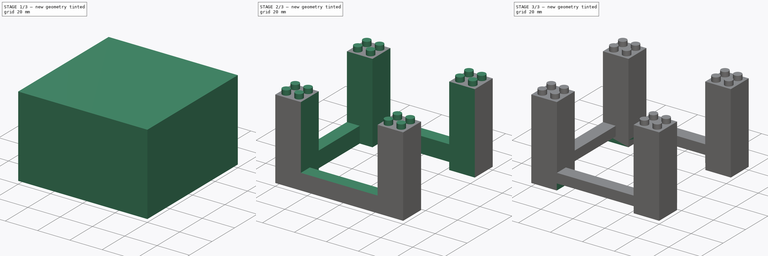
[diagram: build sequence overview — one tinted view per stage of 3, left to right]
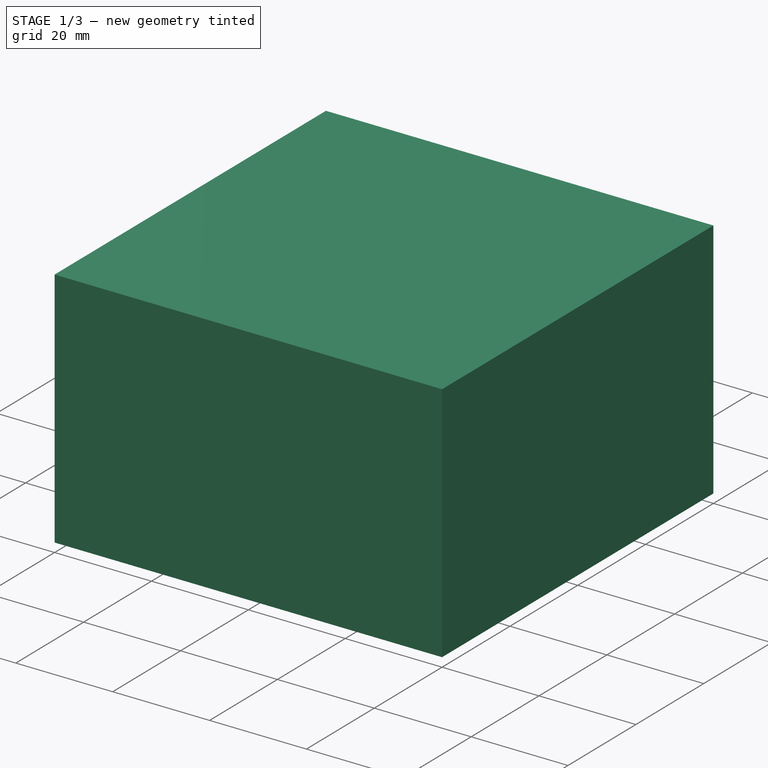
[diagram: stage 1 of 3 — iso view after this stage's code; geometry added in this stage tinted green]
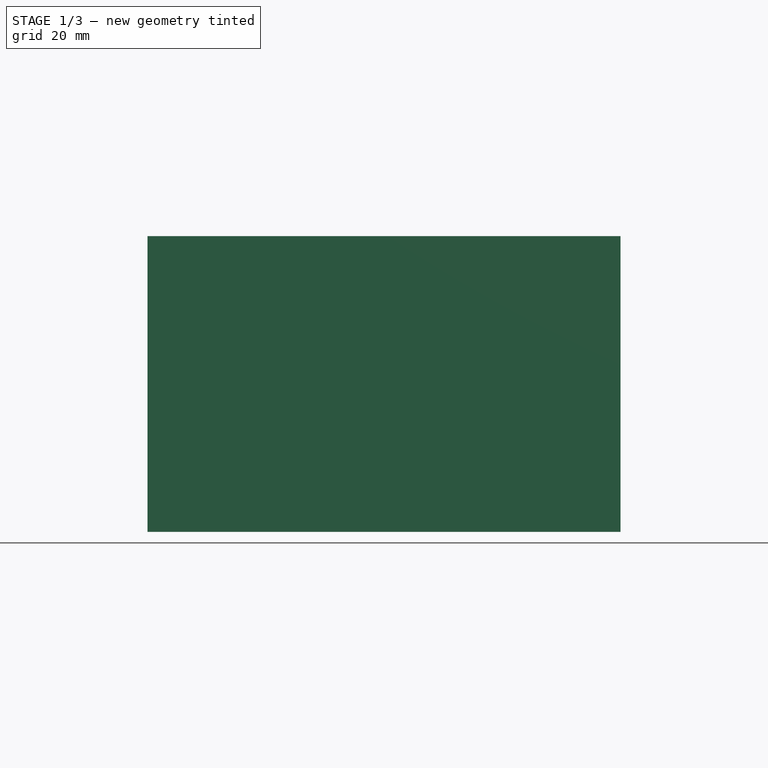
[diagram: stage 1 of 3 — front view after this stage's code; geometry added in this stage tinted green]
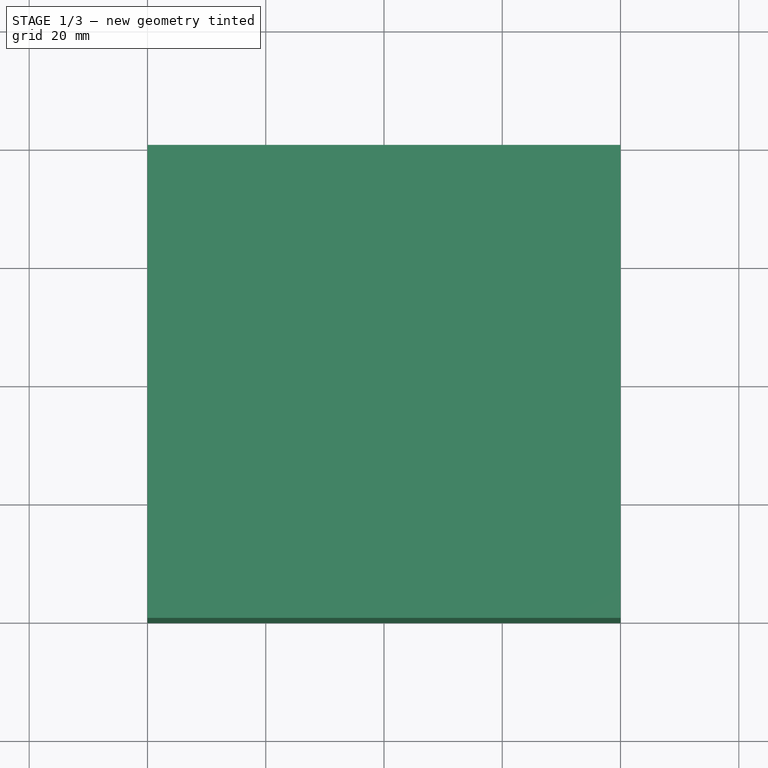
[diagram: stage 1 of 3 — top view after this stage's code; geometry added in this stage tinted green]
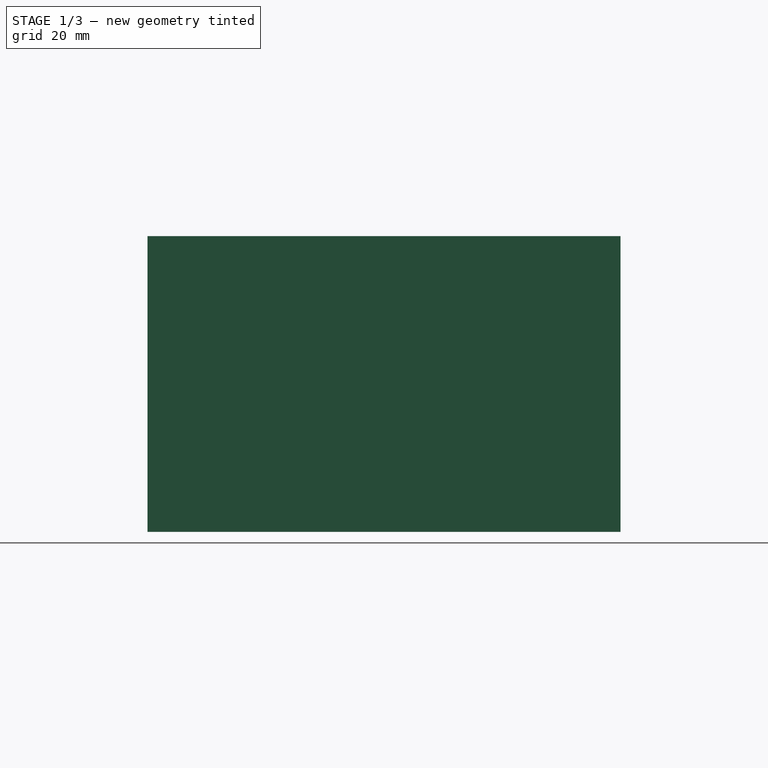
[diagram: stage 1 of 3 — right view after this stage's code; geometry added in this stage tinted green]
FCSTD DOCUMENT  (FreeCAD 0.15R4604 (Git))
Label: Turtles_Pump_Stage
License: CC-BY 3.0
LicenseURL: http://creativecommons.org/licenses/by/3.0/
objects: Sketcher::SketchObject×7, PartDesign::Pocket×5, PartDesign::Pad×2
note: 21 computed .brp shape members not serialized (recipe doc carries the construction recipe); baked Part::Feature solids carry a one-line shape summary decoded from their .brp

FEATURE [Sketcher::SketchObject] Sketch  label="Starting_Pad_Sketch"
  sketch-geometry (4):
    g0: LineSegment StartX=-40 StartY=40 StartZ=0 EndX=-40 EndY=-40 EndZ=0
    g1: LineSegment StartX=-40 StartY=-40 StartZ=0 EndX=40 EndY=-40 EndZ=0
    g2: LineSegment StartX=40 StartY=-40 StartZ=0 EndX=40 EndY=40 EndZ=0
    g3: LineSegment StartX=40 StartY=40 StartZ=0 EndX=-40 EndY=40 EndZ=0
  constraints (11):
    c: Coincident(g0,g1)
    c: Coincident(g1,g2)
    c: Coincident(g2,g3)
    c: Coincident(g3,g0)
    c: DistanceX(g3) = -80
    c: DistanceY(g2) = 80
    c: DistanceY(g0) = -80
    c: DistanceX(g1) = 80
    c: Vertical(g0)
    c: Horizontal(g1)
    c: Symmetric(g0,g2,g-1)
FEATURE [PartDesign::Pad] Pad  label="Starting_Pad"
  Length = 50
  Length2 = 20
  Sketch = -> Sketch
  Type = 0
FEATURE [Sketcher::SketchObject] Sketch007  label="Lego_Female_Pocket_Sketch"
  Placement = pos=(0,0,0) rot=(1,0,0;3.14159rad)
  Support = -> Pad [Face5]
  sketch-geometry (20):
    g0: LineSegment StartX=-38.65 StartY=38.65 StartZ=0 EndX=-25.25 EndY=38.65 EndZ=0
    g1: LineSegment StartX=-25.25 StartY=38.65 StartZ=0 EndX=-25.25 EndY=25.25 EndZ=0
    g2: LineSegment StartX=-25.25 StartY=25.25 StartZ=0 EndX=-38.65 EndY=25.25 EndZ=0
    g3: LineSegment StartX=-38.65 StartY=25.25 StartZ=0 EndX=-38.65 EndY=38.65 EndZ=0
    g4: Circle CenterX=-31.95 CenterY=31.95 CenterZ=0 NormalX=0 NormalY=0 NormalZ=1 Radius=3.25
    g5: LineSegment StartX=25.25 StartY=38.65 StartZ=0 EndX=38.65 EndY=38.65 EndZ=0
    g6: LineSegment StartX=38.65 StartY=38.65 StartZ=0 EndX=38.65 EndY=25.25 EndZ=0
    g7: LineSegment StartX=38.65 StartY=25.25 StartZ=0 EndX=25.25 EndY=25.25 EndZ=0
    g8: LineSegment StartX=25.25 StartY=25.25 StartZ=0 EndX=25.25 EndY=38.65 EndZ=0
    g9: Circle CenterX=31.95 CenterY=31.95 CenterZ=0 NormalX=0 NormalY=0 NormalZ=1 Radius=3.25
    g10: LineSegment StartX=-38.65 StartY=-38.65 StartZ=0 EndX=-25.25 EndY=-38.65 EndZ=0
    g11: LineSegment StartX=-25.25 StartY=-38.65 StartZ=0 EndX=-25.25 EndY=-25.25 EndZ=0
    g12: LineSegment StartX=-25.25 StartY=-25.25 StartZ=0 EndX=-38.65 EndY=-25.25 EndZ=0
    g13: LineSegment StartX=-38.65 StartY=-25.25 StartZ=0 EndX=-38.65 EndY=-38.65 EndZ=0
    g14: Circle CenterX=-31.95 CenterY=-31.95 CenterZ=0 NormalX=0 NormalY=0 NormalZ=1 Radius=3.25
    g15: LineSegment StartX=25.25 StartY=-25.25 StartZ=0 EndX=38.65 EndY=-25.25 EndZ=0
    g16: LineSegment StartX=38.65 StartY=-25.25 StartZ=0 EndX=38.65 EndY=-38.65 EndZ=0
    g17: LineSegment StartX=38.65 StartY=-38.65 StartZ=0 EndX=25.25 EndY=-38.65 EndZ=0
    g18: LineSegment StartX=25.25 StartY=-38.65 StartZ=0 EndX=25.25 EndY=-25.25 EndZ=0
    g19: Circle CenterX=31.95 CenterY=-31.95 CenterZ=0 NormalX=0 NormalY=0 NormalZ=1 Radius=3.25
  constraints (60):
    c: Vertical(g3)
    c: Horizontal(g0)
    c: Vertical(g1)
    c: Horizontal(g2)
    c: Coincident(g0,g3)
    c: Coincident(g3,g2)
    c: Coincident(g2,g1)
    c: Coincident(g1,g0)
    c: DistanceX(g0) = 13.4
    c: DistanceY(g3) = 13.4
    c: DistanceX(g-1,g1) = -25.25
    c: DistanceY(g-1,g1) = 25.25
    c: Radius(g4) = 3.25
    c: DistanceX(g-1,g4) = -31.95
    c: DistanceY(g-1,g4) = 31.95
    c: Coincident(g10,g11)
    c: Coincident(g11,g12)
    c: Coincident(g12,g13)
    c: Coincident(g13,g10)
    c: Horizontal(g10)
    c: Horizontal(g12)
    c: Vertical(g11)
    c: Vertical(g13)
    c: Coincident(g15,g16)
    c: Coincident(g16,g17)
    c: Coincident(g17,g18)
    c: Coincident(g18,g15)
    c: Horizontal(g15)
    c: Horizontal(g17)
    c: Vertical(g16)
    c: Vertical(g18)
    c: Vertical(g8)
    c: Vertical(g6)
    c: Horizontal(g5)
    c: Horizontal(g7)
    c: DistanceX(g-1,g14) = -31.95
    c: DistanceY(g-1,g14) = -31.95
    c: DistanceX(g10) = 13.4
    c: DistanceY(g13) = -13.4
    c: DistanceX(g-1,g11) = -25.25
    c: DistanceY(g-1,g11) = -25.25
    c: DistanceY(g16) = -13.4
    c: DistanceX(g17) = -13.4
    c: DistanceX(g5) = 13.4
    c: DistanceY(g6) = -13.4
    c: DistanceX(g-1,g19) = 31.95
    c: DistanceY(g-1,g19) = -31.95
    c: DistanceX(g-1,g15) = 25.25
    c: DistanceY(g-1,g15) = -25.25
    c: DistanceX(g-1,g9) = 31.95
    c: DistanceY(g-1,g9) = 31.95
    c: DistanceX(g-1,g7) = 25.25
    c: DistanceY(g-1,g7) = 25.25
    c: Radius(g14) = 3.25
    c: Radius(g19) = 3.25
    c: Radius(g9) = 3.25
    c: Coincident(g8,g5)
    c: Coincident(g7,g6)
    c: Coincident(g5,g6)
    c: Coincident(g8,g7)
FEATURE [PartDesign::Pocket] Pocket  label="Lego_Female_Pocket"
  Length = 5
  Sketch = -> Sketch007
  Type = 0
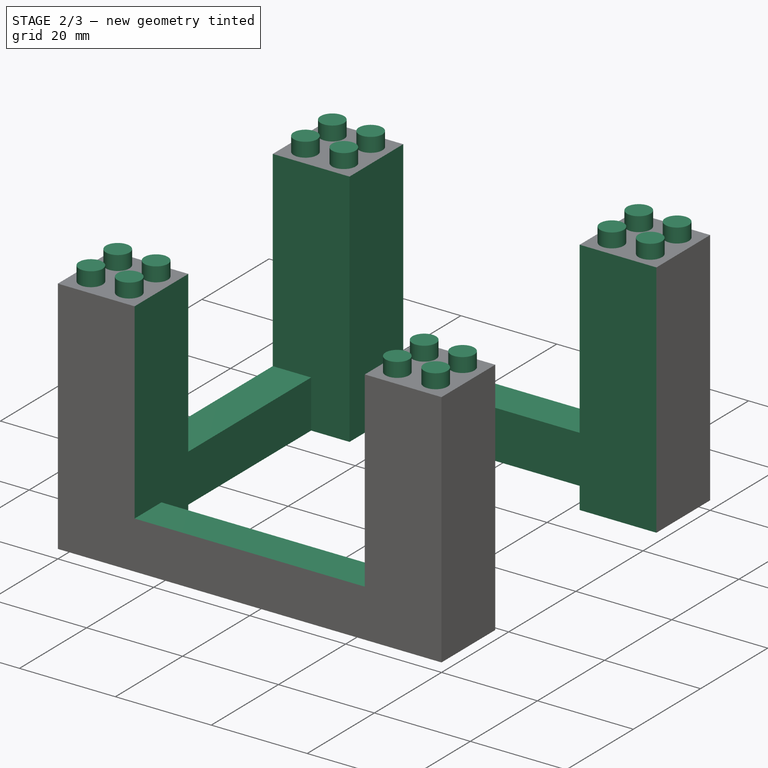
[diagram: stage 2 of 3 — iso view after this stage's code; geometry added in this stage tinted green]
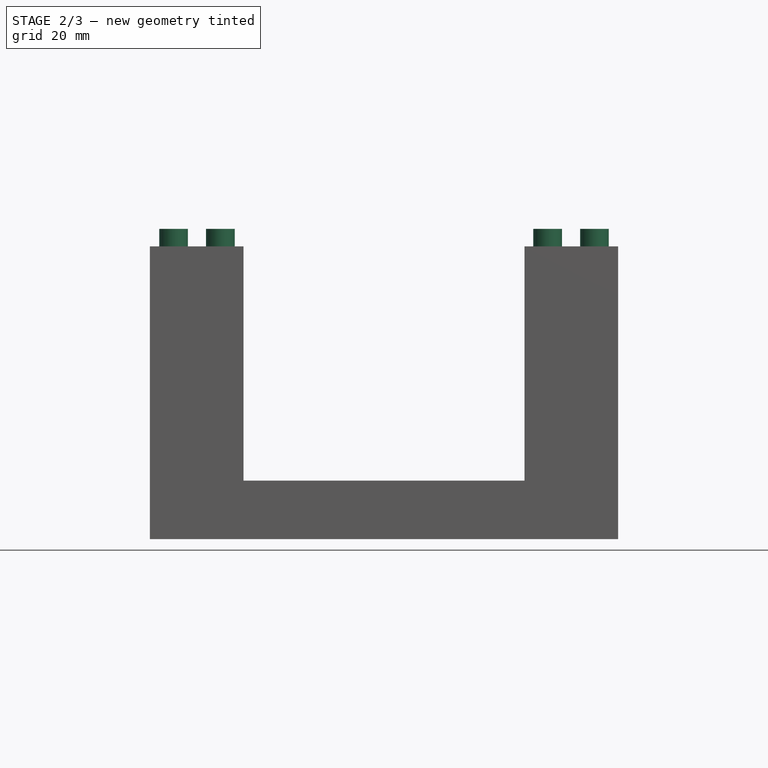
[diagram: stage 2 of 3 — front view after this stage's code; geometry added in this stage tinted green]
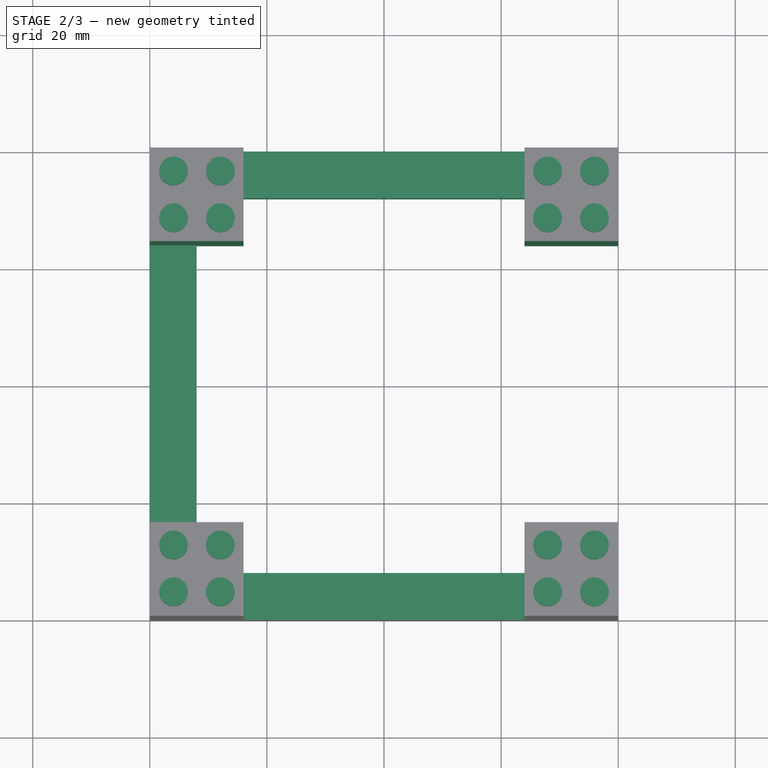
[diagram: stage 2 of 3 — top view after this stage's code; geometry added in this stage tinted green]
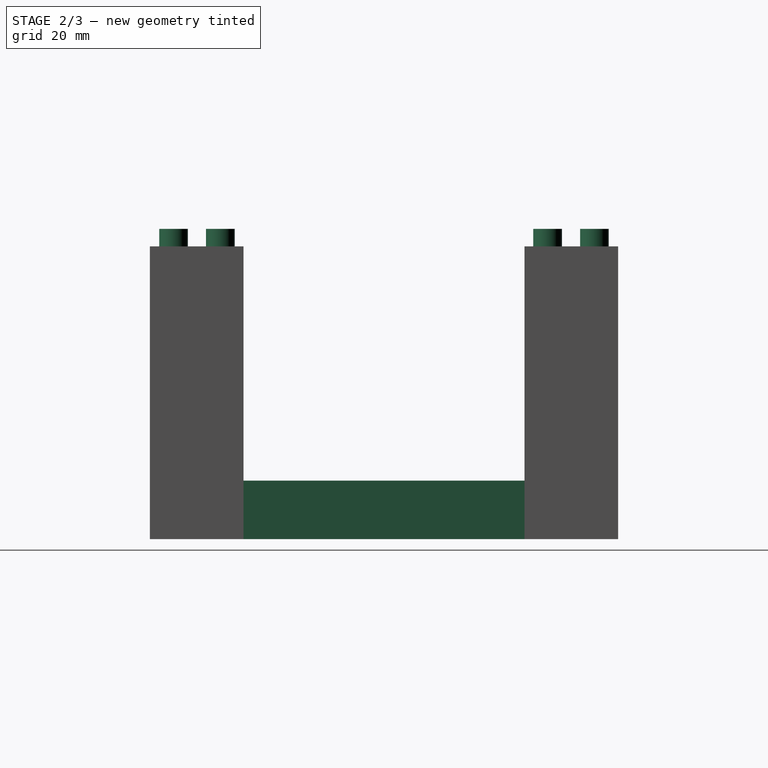
[diagram: stage 2 of 3 — right view after this stage's code; geometry added in this stage tinted green]
FEATURE [Sketcher::SketchObject] Sketch004  label="Lego_Male_Pad_Sketch"
  Placement = pos=(0,0,50) rot=(0,0,1;0rad)
  Support = -> Pocket [Face5]
  sketch-geometry (16):
    g0: Circle CenterX=-35.95 CenterY=-35.95 CenterZ=0 NormalX=0 NormalY=0 NormalZ=1 Radius=2.45
    g1: Circle CenterX=35.95 CenterY=35.95 CenterZ=0 NormalX=0 NormalY=0 NormalZ=1 Radius=2.45
    g2: Circle CenterX=35.95 CenterY=-35.95 CenterZ=0 NormalX=0 NormalY=0 NormalZ=1 Radius=2.45
    g3: Circle CenterX=-35.95 CenterY=35.95 CenterZ=0 NormalX=0 NormalY=0 NormalZ=1 Radius=2.45
    g4: Circle CenterX=-27.95 CenterY=35.95 CenterZ=0 NormalX=0 NormalY=0 NormalZ=1 Radius=2.45
    g5: Circle CenterX=-27.95 CenterY=27.95 CenterZ=0 NormalX=0 NormalY=0 NormalZ=1 Radius=2.45
    g6: Circle CenterX=27.95 CenterY=27.95 CenterZ=0 NormalX=0 NormalY=0 NormalZ=1 Radius=2.45
    g7: Circle CenterX=27.95 CenterY=35.95 CenterZ=0 NormalX=0 NormalY=0 NormalZ=1 Radius=2.45
    g8: Circle CenterX=-35.95 CenterY=27.95 CenterZ=0 NormalX=0 NormalY=0 NormalZ=1 Radius=2.45
    g9: Circle CenterX=35.95 CenterY=27.95 CenterZ=0 NormalX=0 NormalY=0 NormalZ=1 Radius=2.45
    g10: Circle CenterX=27.95 CenterY=-27.95 CenterZ=0 NormalX=0 NormalY=0 NormalZ=1 Radius=2.45
    g11: Circle CenterX=27.95 CenterY=-35.95 CenterZ=0 NormalX=0 NormalY=0 NormalZ=1 Radius=2.45
    g12: Circle CenterX=35.95 CenterY=-27.95 CenterZ=0 NormalX=0 NormalY=0 NormalZ=1 Radius=2.45
    g13: Circle CenterX=-27.95 CenterY=-27.95 CenterZ=0 NormalX=0 NormalY=0 NormalZ=1 Radius=2.45
    g14: Circle CenterX=-27.95 CenterY=-35.95 CenterZ=0 NormalX=0 NormalY=0 NormalZ=1 Radius=2.45
    g15: Circle CenterX=-35.95 CenterY=-27.95 CenterZ=0 NormalX=0 NormalY=0 NormalZ=1 Radius=2.45
  constraints (48):
    c: Radius(g4) = 2.45
    c: Equal(g4,g3)
    c: Equal(g4,g8)
    c: Equal(g4,g5)
    c: Equal(g4,g6)
    c: Equal(g4,g7)
    c: Equal(g4,g1)
    c: Equal(g4,g9)
    c: Equal(g4,g13)
    c: Equal(g4,g14)
    c: Equal(g4,g0)
    c: Equal(g4,g15)
    c: Equal(g4,g11)
    c: Equal(g4,g2)
    c: Equal(g4,g12)
    c: Equal(g4,g10)
    c: DistanceX(g-1,g5) = -27.95
    c: DistanceX(g-1,g4) = -27.95
    c: DistanceX(g-1,g3) = -35.95
    c: DistanceX(g-1,g8) = -35.95
    c: DistanceY(g-1,g5) = 27.95
    c: DistanceY(g-1,g8) = 27.95
    c: DistanceY(g-1,g4) = 35.95
    c: DistanceY(g-1,g3) = 35.95
    c: DistanceY(g-1,g13) = -27.95
    c: DistanceY(g-1,g15) = -27.95
    c: DistanceX(g-1,g13) = -27.95
    c: DistanceX(g-1,g14) = -27.95
    c: DistanceX(g-1,g0) = -35.95
    c: DistanceX(g-1,g15) = -35.95
    c: DistanceX(g-1,g11) = 27.95
    c: DistanceX(g-1,g10) = 27.95
    c: DistanceX(g-1,g12) = 35.95
    c: DistanceX(g-1,g2) = 35.95
    c: DistanceY(g-1,g12) = -27.95
    c: DistanceY(g-1,g10) = -27.95
    c: DistanceY(g-1,g2) = -35.95
    c: DistanceY(g-1,g11) = -35.95
    c: DistanceX(g-1,g6) = 27.95
    c: DistanceX(g-1,g7) = 27.95
    c: DistanceX(g-1,g9) = 35.95
    c: DistanceX(g-1,g1) = 35.95
    c: DistanceY(g-1,g9) = 27.95
    c: DistanceY(g-1,g6) = 27.95
    c: DistanceY(g-1,g1) = 35.95
    c: DistanceY(g-1,g7) = 35.95
    c: DistanceY(g-1,g14) = -35.95
    c: DistanceY(g-1,g0) = -35.95
FEATURE [PartDesign::Pad] Pad001  label="Lego_Male_Pad"
  Length = 3
  Length2 = 100
  Sketch = -> Sketch004
  Type = 0
FEATURE [Sketcher::SketchObject] Sketch008  label="Top_Lego_Pocket_Sketch"
  Placement = pos=(0,0,50) rot=(0,0,1;0rad)
  Support = -> Pad001 [Face5]
  sketch-geometry (12):
    g0: LineSegment StartX=-24 StartY=40 StartZ=0 EndX=-24 EndY=24 EndZ=0
    g1: LineSegment StartX=-24 StartY=24 StartZ=0 EndX=-40 EndY=24 EndZ=0
    g2: LineSegment StartX=-40 StartY=24 StartZ=0 EndX=-40 EndY=-24 EndZ=0
    g3: LineSegment StartX=-40 StartY=-24 StartZ=0 EndX=-24 EndY=-24 EndZ=0
    g4: LineSegment StartX=-24 StartY=-24 StartZ=0 EndX=-24 EndY=-40 EndZ=0
    g5: LineSegment StartX=-24 StartY=-40 StartZ=0 EndX=24 EndY=-40 EndZ=0
    g6: LineSegment StartX=24 StartY=-40 StartZ=0 EndX=24 EndY=-24 EndZ=0
    g7: LineSegment StartX=24 StartY=-24 StartZ=0 EndX=40 EndY=-24 EndZ=0
    g8: LineSegment StartX=40 StartY=-24 StartZ=0 EndX=40 EndY=24 EndZ=0
    g9: LineSegment StartX=40 StartY=24 StartZ=0 EndX=24 EndY=24 EndZ=0
    g10: LineSegment StartX=24 StartY=24 StartZ=0 EndX=24 EndY=40 EndZ=0
    g11: LineSegment StartX=24 StartY=40 StartZ=0 EndX=-24 EndY=40 EndZ=0
  constraints (36):
    c: Vertical(g0)
    c: Coincident(g0,g1)
    c: Horizontal(g1)
    c: Coincident(g1,g2)
    c: Vertical(g2)
    c: Coincident(g2,g3)
    c: Horizontal(g3)
    c: Coincident(g3,g4)
    c: Vertical(g4)
    c: Coincident(g4,g5)
    c: Horizontal(g5)
    c: Coincident(g5,g6)
    c: Vertical(g6)
    c: Coincident(g6,g7)
    c: Horizontal(g7)
    c: Coincident(g7,g8)
    c: Vertical(g8)
    c: Coincident(g8,g9)
    c: Horizontal(g9)
    c: Coincident(g9,g10)
    c: Vertical(g10)
    c: Coincident(g10,g11)
    c: Coincident(g11,g0)
    c: Horizontal(g11)
    c: DistanceX(g-1,g0) = -24
    c: DistanceY(g-1,g0) = 24
    c: DistanceY(g-1,g3) = -24
    c: DistanceX(g-1,g3) = -24
    c: DistanceX(g-1,g6) = 24
    c: DistanceY(g-1,g6) = -24
    c: DistanceX(g-1,g9) = 24
    c: DistanceY(g-1,g9) = 24
    c: DistanceY(g0) = -16
    c: DistanceX(g1) = -16
    c: DistanceY(g6) = 16
    c: DistanceX(g7) = 16
FEATURE [PartDesign::Pocket] Pocket001  label="Top_Lego_Pocket"
  Length = 40
  Sketch = -> Sketch008
  Type = 0
FEATURE [Sketcher::SketchObject] Sketch005  label="Top_Hole_Pocket_Sketch"
  Placement = pos=(0,0,10) rot=(0,0,1;0rad)
  Support = -> Pocket001 [Face6]
  sketch-geometry (12):
    g0: LineSegment StartX=24 StartY=24 StartZ=0 EndX=24 EndY=32 EndZ=0
    g1: LineSegment StartX=24 StartY=32 StartZ=0 EndX=-24 EndY=32 EndZ=0
    g2: LineSegment StartX=-24 StartY=32 StartZ=0 EndX=-24 EndY=24 EndZ=0
    g3: LineSegment StartX=-24 StartY=24 StartZ=0 EndX=-32 EndY=24 EndZ=0
    g4: LineSegment StartX=-32 StartY=24 StartZ=0 EndX=-32 EndY=-24 EndZ=0
    g5: LineSegment StartX=-32 StartY=-24 StartZ=0 EndX=-24 EndY=-24 EndZ=0
    g6: LineSegment StartX=-24 StartY=-24 StartZ=0 EndX=-24 EndY=-32 EndZ=0
    g7: LineSegment StartX=-24 StartY=-32 StartZ=0 EndX=24 EndY=-32 EndZ=0
    g8: LineSegment StartX=24 StartY=-32 StartZ=0 EndX=24 EndY=-24 EndZ=0
    g9: LineSegment StartX=24 StartY=-24 StartZ=0 EndX=40 EndY=-24 EndZ=0
    g10: LineSegment StartX=40 StartY=-24 StartZ=0 EndX=40 EndY=24 EndZ=0
    g11: LineSegment StartX=40 StartY=24 StartZ=0 EndX=24 EndY=24 EndZ=0
  constraints (36):
    c: Coincident(g0,g1)
    c: Coincident(g1,g2)
    c: Coincident(g2,g3)
    c: Horizontal(g3)
    c: Coincident(g3,g4)
    c: Vertical(g4)
    c: Coincident(g4,g5)
    c: Horizontal(g5)
    c: Coincident(g5,g6)
    c: Vertical(g6)
    c: Coincident(g6,g7)
    c: Horizontal(g7)
    c: Coincident(g7,g8)
    c: Vertical(g8)
    c: Coincident(g8,g9)
    c: Horizontal(g9)
    c: Coincident(g9,g10)
    c: Vertical(g10)
    c: Coincident(g10,g11)
    c: Coincident(g11,g0)
    c: Horizontal(g11)
    c: DistanceY(g-1,g0) = 32
    c: Horizontal(g1)
    c: DistanceX(g-1,g3) = -32
    c: DistanceY(g-1,g6) = -32
    c: DistanceX(g-1,g9) = 40
    c: Vertical(g2)
    c: DistanceX(g-1,g2) = -24
    c: DistanceY(g-1,g2) = 24
    c: DistanceY(g-1,g5) = -24
    c: DistanceX(g-1,g5) = -24
    c: DistanceX(g-1,g8) = 24
    c: DistanceY(g-1,g8) = -24
    c: DistanceX(g-1,g0) = 24
    c: DistanceY(g-1,g0) = 24
    c: Vertical(g0)
FEATURE [PartDesign::Pocket] Pocket002  label="Top_Hole_Pocket"
  Length = 5
  Sketch = -> Sketch005
  Type = 1
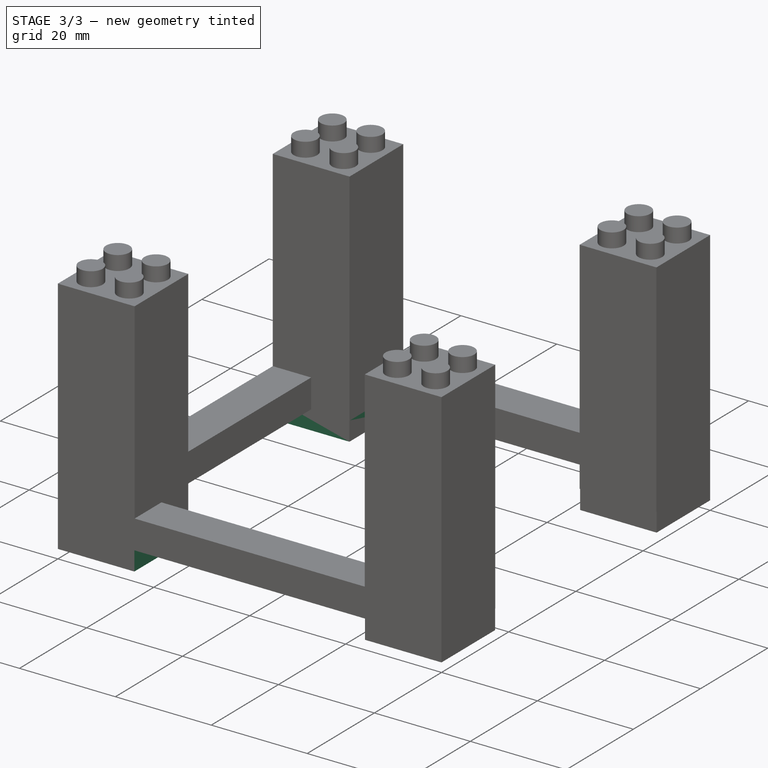
[diagram: stage 3 of 3 — iso view after this stage's code; geometry added in this stage tinted green]
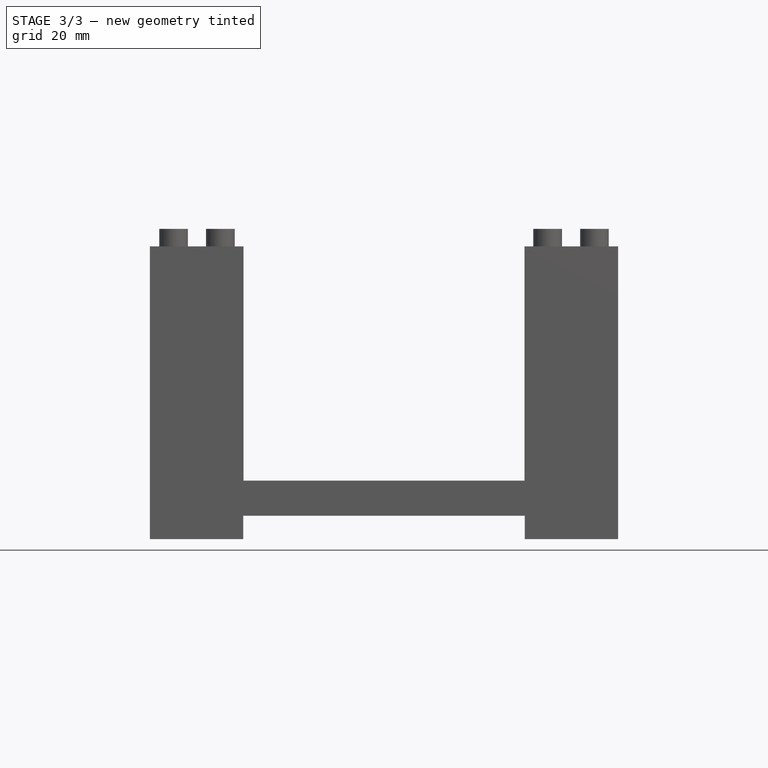
[diagram: stage 3 of 3 — front view after this stage's code; geometry added in this stage tinted green]
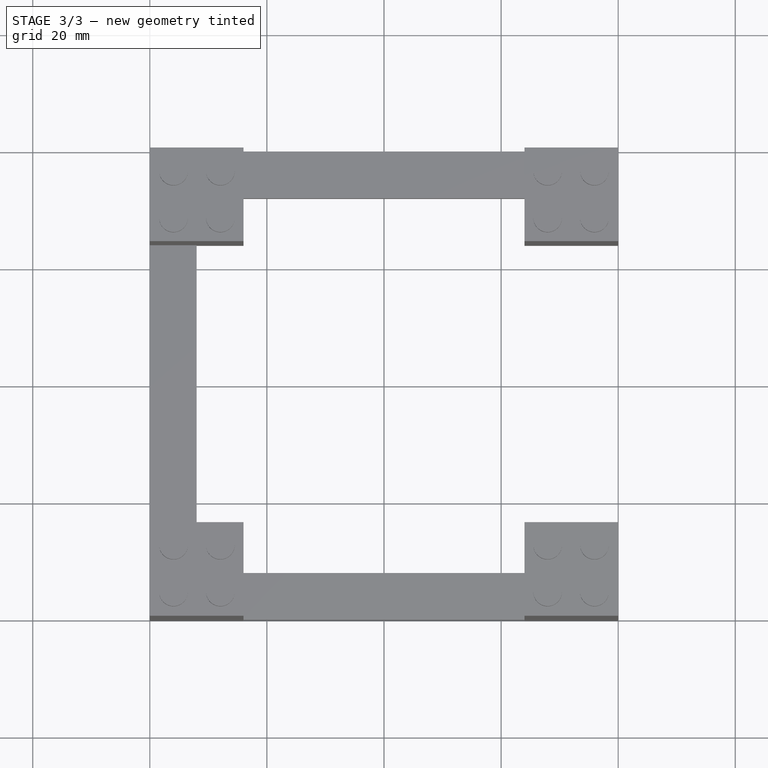
[diagram: stage 3 of 3 — top view after this stage's code; geometry added in this stage tinted green]
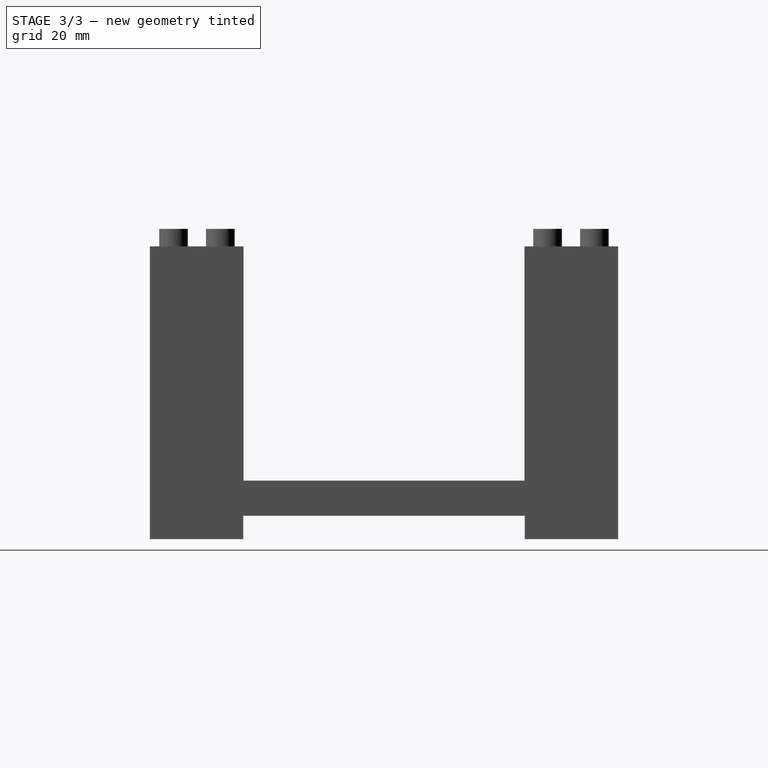
[diagram: stage 3 of 3 — right view after this stage's code; geometry added in this stage tinted green]
FEATURE [Sketcher::SketchObject] Sketch002  label="Front_Entry_Pocket_Sketch"
  Placement = pos=(0,-40,0) rot=(1,0,0;1.5708rad)
  Support = -> Pocket002 [Face3]
  sketch-geometry (4):
    g0: LineSegment StartX=24.05 StartY=4 StartZ=0 EndX=24.05 EndY=0 EndZ=0
    g1: LineSegment StartX=24.05 StartY=0 StartZ=0 EndX=-24.05 EndY=0 EndZ=0
    g2: LineSegment StartX=-24.05 StartY=0 StartZ=0 EndX=-24.05 EndY=4 EndZ=0
    g3: LineSegment StartX=-24.05 StartY=4 StartZ=0 EndX=24.05 EndY=4 EndZ=0
  constraints (12):
    c: Coincident(g0,g1)
    c: Coincident(g1,g2)
    c: Vertical(g2)
    c: Vertical(g0)
    c: DistanceX(g-1,g0) = 24.05
    c: Horizontal(g3)
    c: DistanceX(g-1,g1) = -24.05
    c: DistanceY(g2) = 4
    c: DistanceY(g0) = -4
    c: Coincident(g3,g0)
    c: Coincident(g2,g3)
    c: DistanceY(g-1,g1) = 0
FEATURE [PartDesign::Pocket] Pocket003  label="Front_Entry_Pocket"
  Length = 5
  Sketch = -> Sketch002
  Type = 1
FEATURE [Sketcher::SketchObject] Sketch003  label="Right_Entry_Pocket_Sketch"
  Placement = pos=(-40,0,0) rot=(0.57735,-0.57735,-0.57735;2.0944rad)
  Support = -> Pocket003 [Face1]
  sketch-geometry (4):
    g0: LineSegment StartX=24.05 StartY=4 StartZ=0 EndX=24.05 EndY=0 EndZ=0
    g1: LineSegment StartX=24.05 StartY=0 StartZ=0 EndX=-24.05 EndY=0 EndZ=0
    g2: LineSegment StartX=-24.05 StartY=0 StartZ=0 EndX=-24.05 EndY=4 EndZ=0
    g3: LineSegment StartX=-24.05 StartY=4 StartZ=0 EndX=24.05 EndY=4 EndZ=0
  constraints (12):
    c: Coincident(g0,g1)
    c: Coincident(g1,g2)
    c: DistanceX(g-1,g1) = -24.05
    c: Horizontal(g3)
    c: Vertical(g2)
    c: DistanceY(g2) = 4
    c: DistanceX(g-1,g0) = 24.05
    c: Horizontal(g1)
    c: Coincident(g3,g2)
    c: Coincident(g3,g0)
    c: Vertical(g0)
    c: DistanceY(g-1,g1) = 0
FEATURE [PartDesign::Pocket] Pocket004  label="Right_Entry_Pocket"
  Length = 5
  Sketch = -> Sketch003
  Type = 1
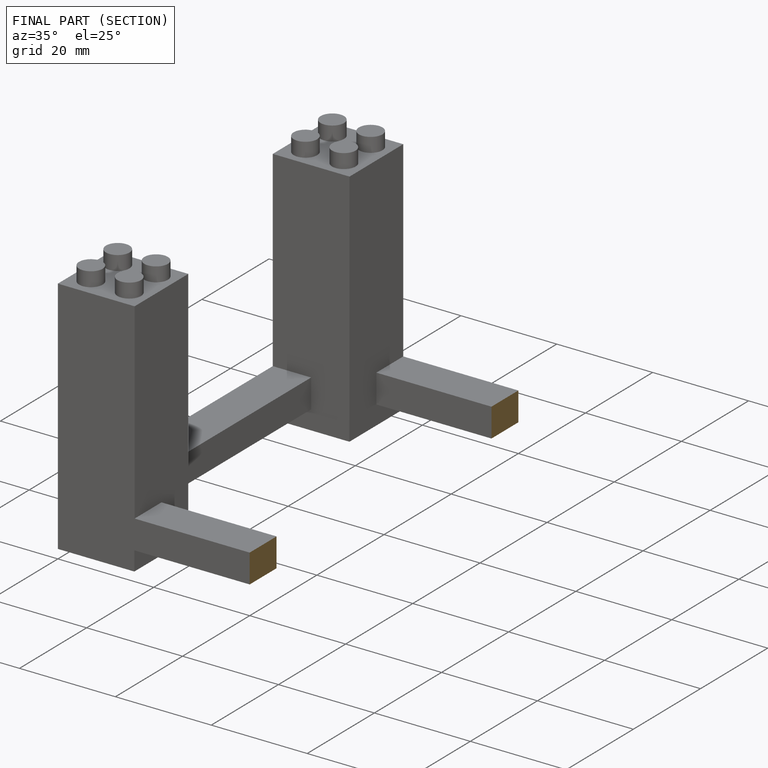
[diagram: finished part — half-section view (interior)]
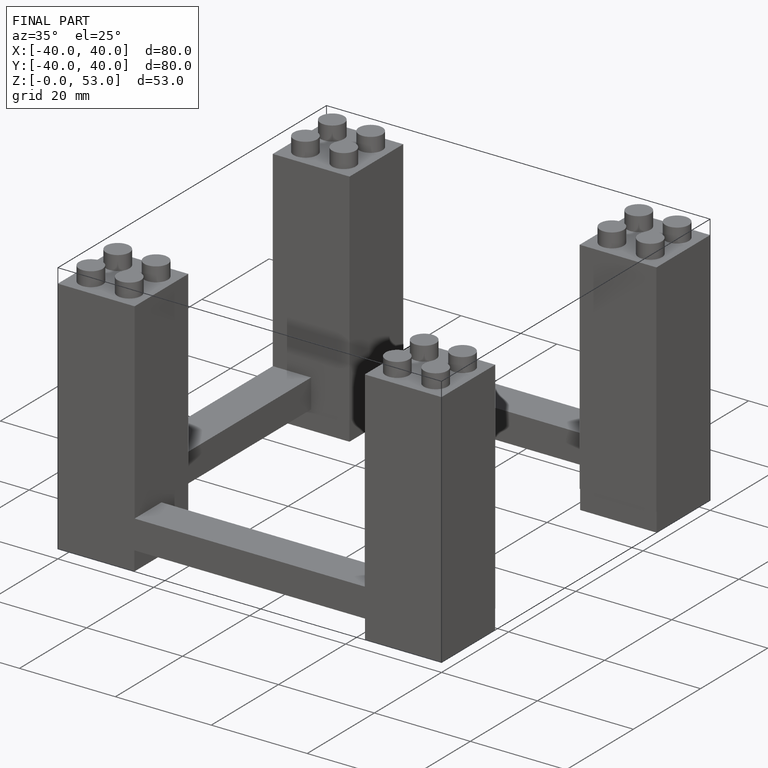
[diagram: finished part — iso view with bounding-box wireframe]
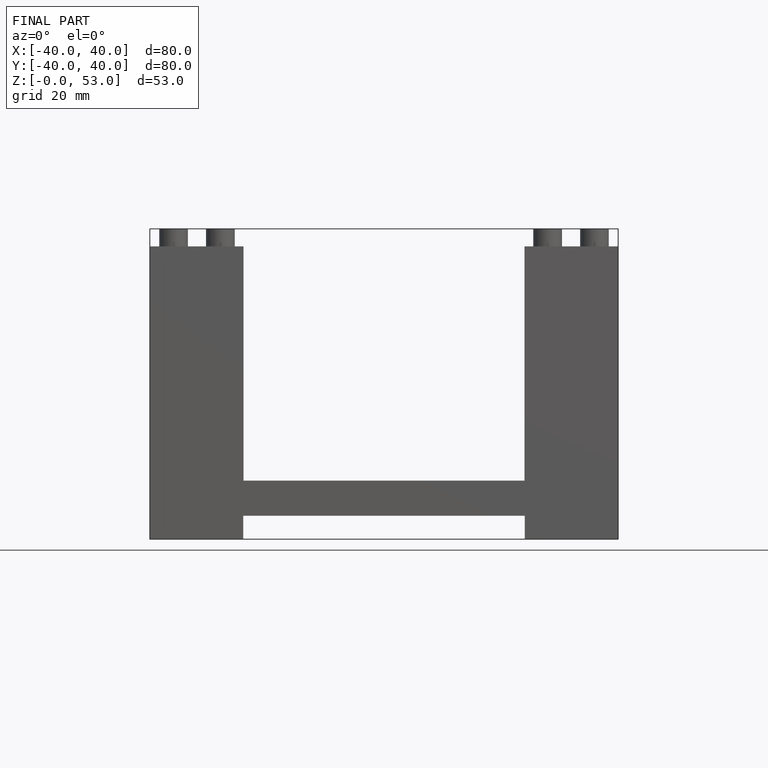
[diagram: finished part — front view with bounding-box wireframe]
